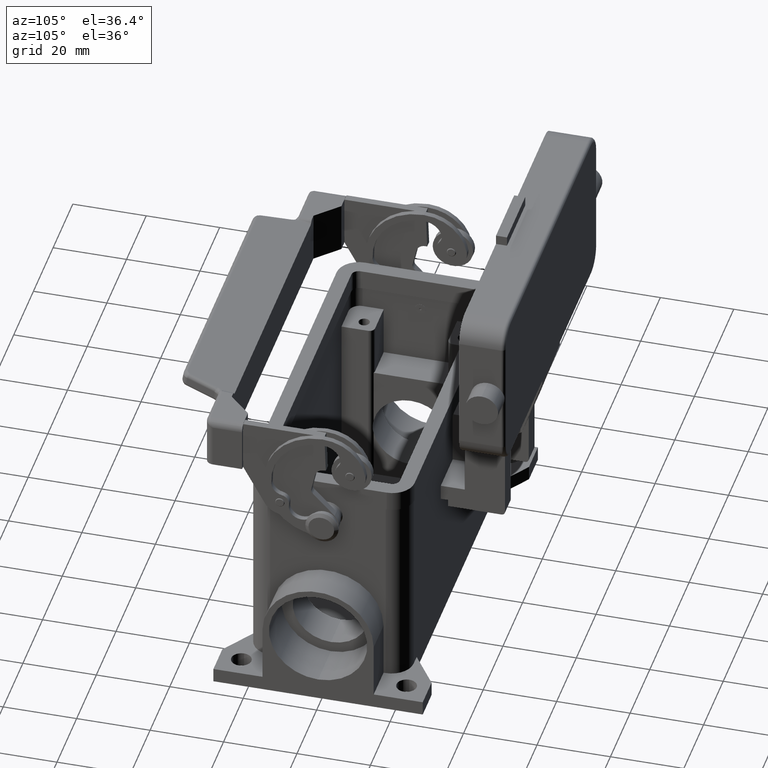
[diagram: clean part render]
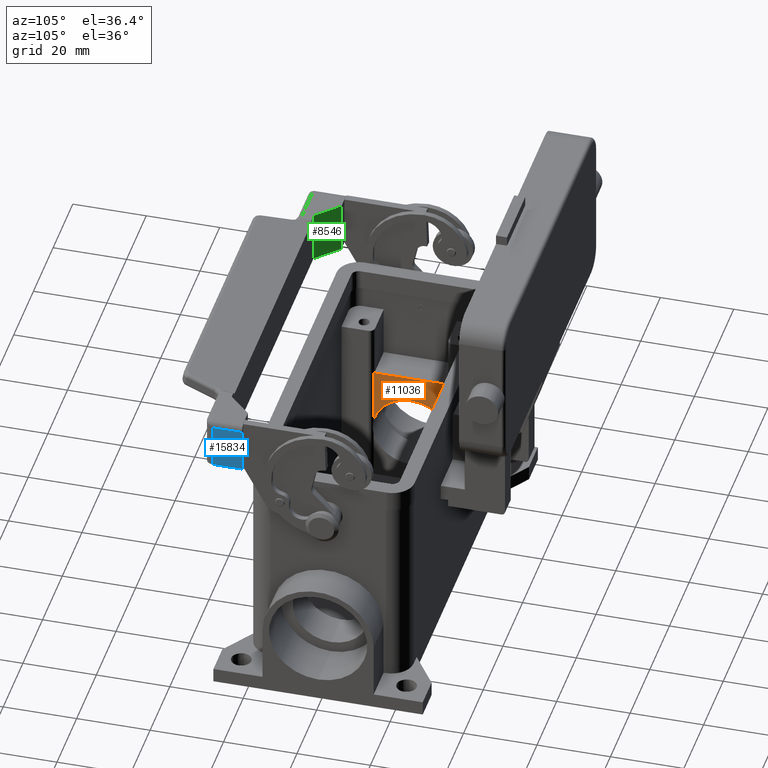
[diagram: same view with three faces highlighted in distinct colors, each labeled with its STEP entity id]
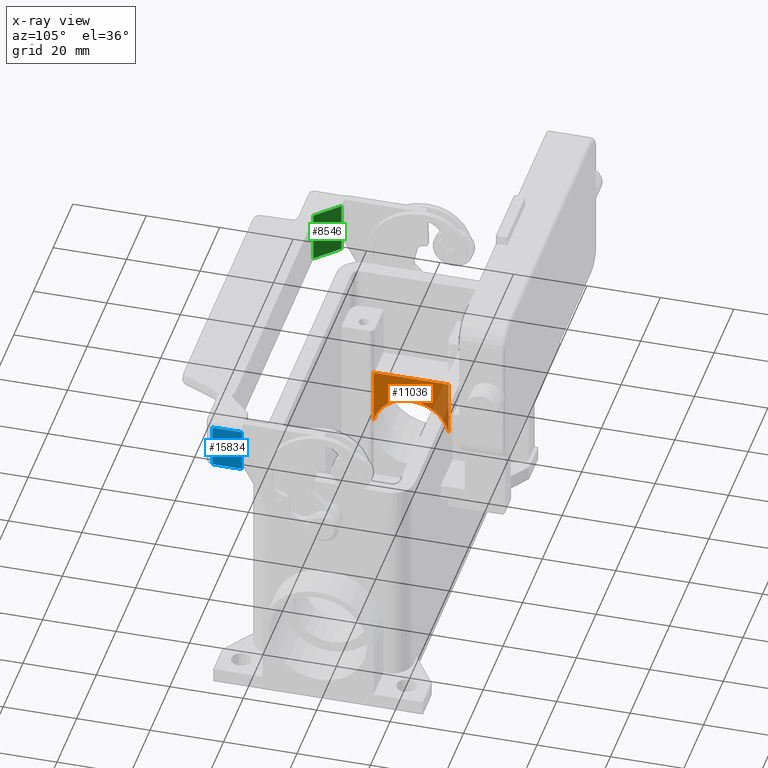
[diagram: x-ray of the same camera — body ghosted, the three highlighted faces saturated]
A machine part, auxiliary view with three faces highlighted in distinct colors.
The next image is the same camera in x-ray (body ghosted, the three faces saturated) — at least one of them is partly hidden behind the body in this view.
Their STEP definitions:

[orange] entity #11036 — the highlighted planar face has unit normal (1, 0, 0).
#2740=CARTESIAN_POINT('',(-36.0,1.272366E-015,-4.219999999999981));
#2741=VERTEX_POINT('',#2740);
#2750=CARTESIAN_POINT('',(-36.0,-10.200961894323326,-12.637064007484284));
#2751=VERTEX_POINT('',#2750);
#2752=CARTESIAN_POINT('',(-36.0,0.0,-14.610000000000007));
#2753=DIRECTION('',(-1.0,0.0,0.0));
#2754=DIRECTION('',(0.0,0.0,1.0));
#2755=AXIS2_PLACEMENT_3D('',#2752,#2753,#2754);
#2756=CIRCLE('',#2755,10.390000000000025);
#2757=EDGE_CURVE('',#2751,#2741,#2756,.T.);
#10507=CARTESIAN_POINT('',(-36.0,-10.200961894323326,3.000000000000003));
#10508=VERTEX_POINT('',#10507);
#10509=CARTESIAN_POINT('',(-36.0,-10.200961894323326,-12.637064007484284));
#10510=DIRECTION('',(0.0,0.0,1.0));
#10511=VECTOR('',#10510,15.637064007484287);
#10512=LINE('',#10509,#10511);
#10513=EDGE_CURVE('',#2751,#10508,#10512,.T.);
#10579=CARTESIAN_POINT('',(-36.0,10.200961894323338,3.000000000000003));
#10580=VERTEX_POINT('',#10579);
#10597=CARTESIAN_POINT('',(-36.0,10.200961894323338,3.000000000000003));
#10598=DIRECTION('',(0.0,-1.0,0.0));
#10599=VECTOR('',#10598,20.401923788646663);
#10600=LINE('',#10597,#10599);
#10601=EDGE_CURVE('',#10580,#10508,#10600,.T.);
#11011=CARTESIAN_POINT('',(-36.0,19.000000000000004,-34.0));
#11012=DIRECTION('',(1.0,0.0,0.0));
#11013=DIRECTION('',(0.0,0.0,-1.0));
#11014=AXIS2_PLACEMENT_3D('',#11011,#11012,#11013);
#11015=PLANE('',#11014);
#11016=ORIENTED_EDGE('',*,*,#2757,.T.);
#11017=CARTESIAN_POINT('',(-36.0,10.200961894323338,-12.637064007484353));
#11018=VERTEX_POINT('',#11017);
#11019=CARTESIAN_POINT('',(-36.0,0.0,-14.610000000000007));
#11020=DIRECTION('',(-1.0,0.0,0.0));
#11021=DIRECTION('',(0.0,0.0,1.0));
#11022=AXIS2_PLACEMENT_3D('',#11019,#11020,#11021);
#11023=CIRCLE('',#11022,10.390000000000025);
#11024=EDGE_CURVE('',#2741,#11018,#11023,.T.);
#11025=ORIENTED_EDGE('',*,*,#11024,.T.);
#11026=CARTESIAN_POINT('',(-36.0,10.200961894323338,3.000000000000003));
#11027=DIRECTION('',(0.0,0.0,-1.0));
#11028=VECTOR('',#11027,15.637064007484355);
#11029=LINE('',#11026,#11028);
#11030=EDGE_CURVE('',#10580,#11018,#11029,.T.);
#11031=ORIENTED_EDGE('',*,*,#11030,.F.);
#11032=ORIENTED_EDGE('',*,*,#10601,.T.);
#11033=ORIENTED_EDGE('',*,*,#10513,.F.);
#11034=EDGE_LOOP('',(#11016,#11025,#11031,#11032,#11033));
#11035=FACE_OUTER_BOUND('',#11034,.T.);
#11036=ADVANCED_FACE('',(#11035),#11015,.T.);

[blue] entity #15834 — the highlighted face is a freeform B-spline surface patch.
#870=CARTESIAN_POINT('',(53.500000000000007,-30.049999999999997,45.0));
#871=VERTEX_POINT('',#870);
#879=CARTESIAN_POINT('',(53.500000000000000,-22.050000000000001,45.0));
#880=VERTEX_POINT('',#879);
#881=CARTESIAN_POINT('',(53.500000000000007,-30.049999999999997,45.0));
#882=DIRECTION('',(0.0,1.0,0.0));
#883=VECTOR('',#882,7.999999999999996);
#884=LINE('',#881,#883);
#885=EDGE_CURVE('',#871,#880,#884,.T.);
#15804=CARTESIAN_POINT('',(53.500000000000000,-22.050000000000001,33.0));
#15805=CARTESIAN_POINT('',(53.500000000000000,-22.050000000000001,45.0));
#15806=CARTESIAN_POINT('',(53.500000000000007,-30.049999999999997,33.0));
#15807=CARTESIAN_POINT('',(53.500000000000000,-30.049999999999994,45.0));
#15808=B_SPLINE_SURFACE_WITH_KNOTS('',1,1,((#15804,#15806),(#15805,#15807)),.UNSPECIFIED.,.F.,.F.,.U.,(2,2),(2,2),(0.0,12.0),(0.0,7.999999999999996),.UNSPECIFIED.);
#15809=CARTESIAN_POINT('',(53.500000000000007,-30.049999999999997,33.0));
#15810=VERTEX_POINT('',#15809);
#15811=CARTESIAN_POINT('',(53.500000000000007,-30.049999999999997,33.0));
#15812=DIRECTION('',(0.0,0.0,1.0));
#15813=VECTOR('',#15812,12.0);
#15814=LINE('',#15811,#15813);
#15815=EDGE_CURVE('',#15810,#871,#15814,.T.);
#15816=ORIENTED_EDGE('',*,*,#15815,.F.);
#15817=CARTESIAN_POINT('',(53.500000000000000,-22.050000000000001,33.0));
#15818=VERTEX_POINT('',#15817);
#15819=CARTESIAN_POINT('',(53.500000000000000,-22.050000000000001,33.0));
#15820=DIRECTION('',(0.0,-1.0,0.0));
#15821=VECTOR('',#15820,7.999999999999996);
#15822=LINE('',#15819,#15821);
#15823=EDGE_CURVE('',#15818,#15810,#15822,.T.);
#15824=ORIENTED_EDGE('',*,*,#15823,.F.);
#15825=CARTESIAN_POINT('',(53.500000000000000,-22.050000000000001,33.0));
#15826=DIRECTION('',(0.0,0.0,1.0));
#15827=VECTOR('',#15826,12.0);
#15828=LINE('',#15825,#15827);
#15829=EDGE_CURVE('',#15818,#880,#15828,.T.);
#15830=ORIENTED_EDGE('',*,*,#15829,.T.);
#15831=ORIENTED_EDGE('',*,*,#885,.F.);
#15832=EDGE_LOOP('',(#15816,#15824,#15830,#15831));
#15833=FACE_OUTER_BOUND('',#15832,.T.);
#15834=ADVANCED_FACE('',(#15833),#15808,.T.);

[green] entity #8546 — the highlighted planar face has unit normal (0.7071, 0.7071, 0).
#8449=CARTESIAN_POINT('',(-47.500000000000000,-22.050000000000011,47.0));
#8450=VERTEX_POINT('',#8449);
#8457=CARTESIAN_POINT('',(-47.500000000000000,-22.050000000000011,33.0));
#8458=VERTEX_POINT('',#8457);
#8459=CARTESIAN_POINT('',(-47.500000000000000,-22.050000000000011,33.0));
#8460=DIRECTION('',(0.0,0.0,1.0));
#8461=VECTOR('',#8460,14.0);
#8462=LINE('',#8459,#8461);
#8463=EDGE_CURVE('',#8458,#8450,#8462,.T.);
#8516=CARTESIAN_POINT('',(-41.500000000000000,-28.049999999999997,40.0));
#8517=DIRECTION('',(0.707106781186547,0.707106781186548,0.0));
#8518=DIRECTION('',(0.0,0.0,-1.0));
#8519=AXIS2_PLACEMENT_3D('',#8516,#8517,#8518);
#8520=PLANE('',#8519);
#8521=CARTESIAN_POINT('',(-41.500000000000000,-28.049999999999997,33.0));
#8522=VERTEX_POINT('',#8521);
#8523=CARTESIAN_POINT('',(-41.500000000000000,-28.049999999999997,33.0));
#8524=DIRECTION('',(-0.707106781186548,0.707106781186547,0.0));
#8525=VECTOR('',#8524,8.485281374238561);
#8526=LINE('',#8523,#8525);
#8527=EDGE_CURVE('',#8522,#8458,#8526,.T.);
#8528=ORIENTED_EDGE('',*,*,#8527,.T.);
#8529=ORIENTED_EDGE('',*,*,#8463,.T.);
#8530=CARTESIAN_POINT('',(-41.500000000000000,-28.049999999999997,47.0));
#8531=VERTEX_POINT('',#8530);
#8532=CARTESIAN_POINT('',(-47.500000000000000,-22.050000000000011,47.0));
#8533=DIRECTION('',(0.707106781186548,-0.707106781186547,0.0));
#8534=VECTOR('',#8533,8.485281374238561);
#8535=LINE('',#8532,#8534);
#8536=EDGE_CURVE('',#8450,#8531,#8535,.T.);
#8537=ORIENTED_EDGE('',*,*,#8536,.T.);
#8538=CARTESIAN_POINT('',(-41.500000000000000,-28.049999999999997,33.0));
#8539=DIRECTION('',(0.0,0.0,1.0));
#8540=VECTOR('',#8539,14.0);
#8541=LINE('',#8538,#8540);
#8542=EDGE_CURVE('',#8522,#8531,#8541,.T.);
#8543=ORIENTED_EDGE('',*,*,#8542,.F.);
#8544=EDGE_LOOP('',(#8528,#8529,#8537,#8543));
#8545=FACE_OUTER_BOUND('',#8544,.T.);
#8546=ADVANCED_FACE('',(#8545),#8520,.T.);